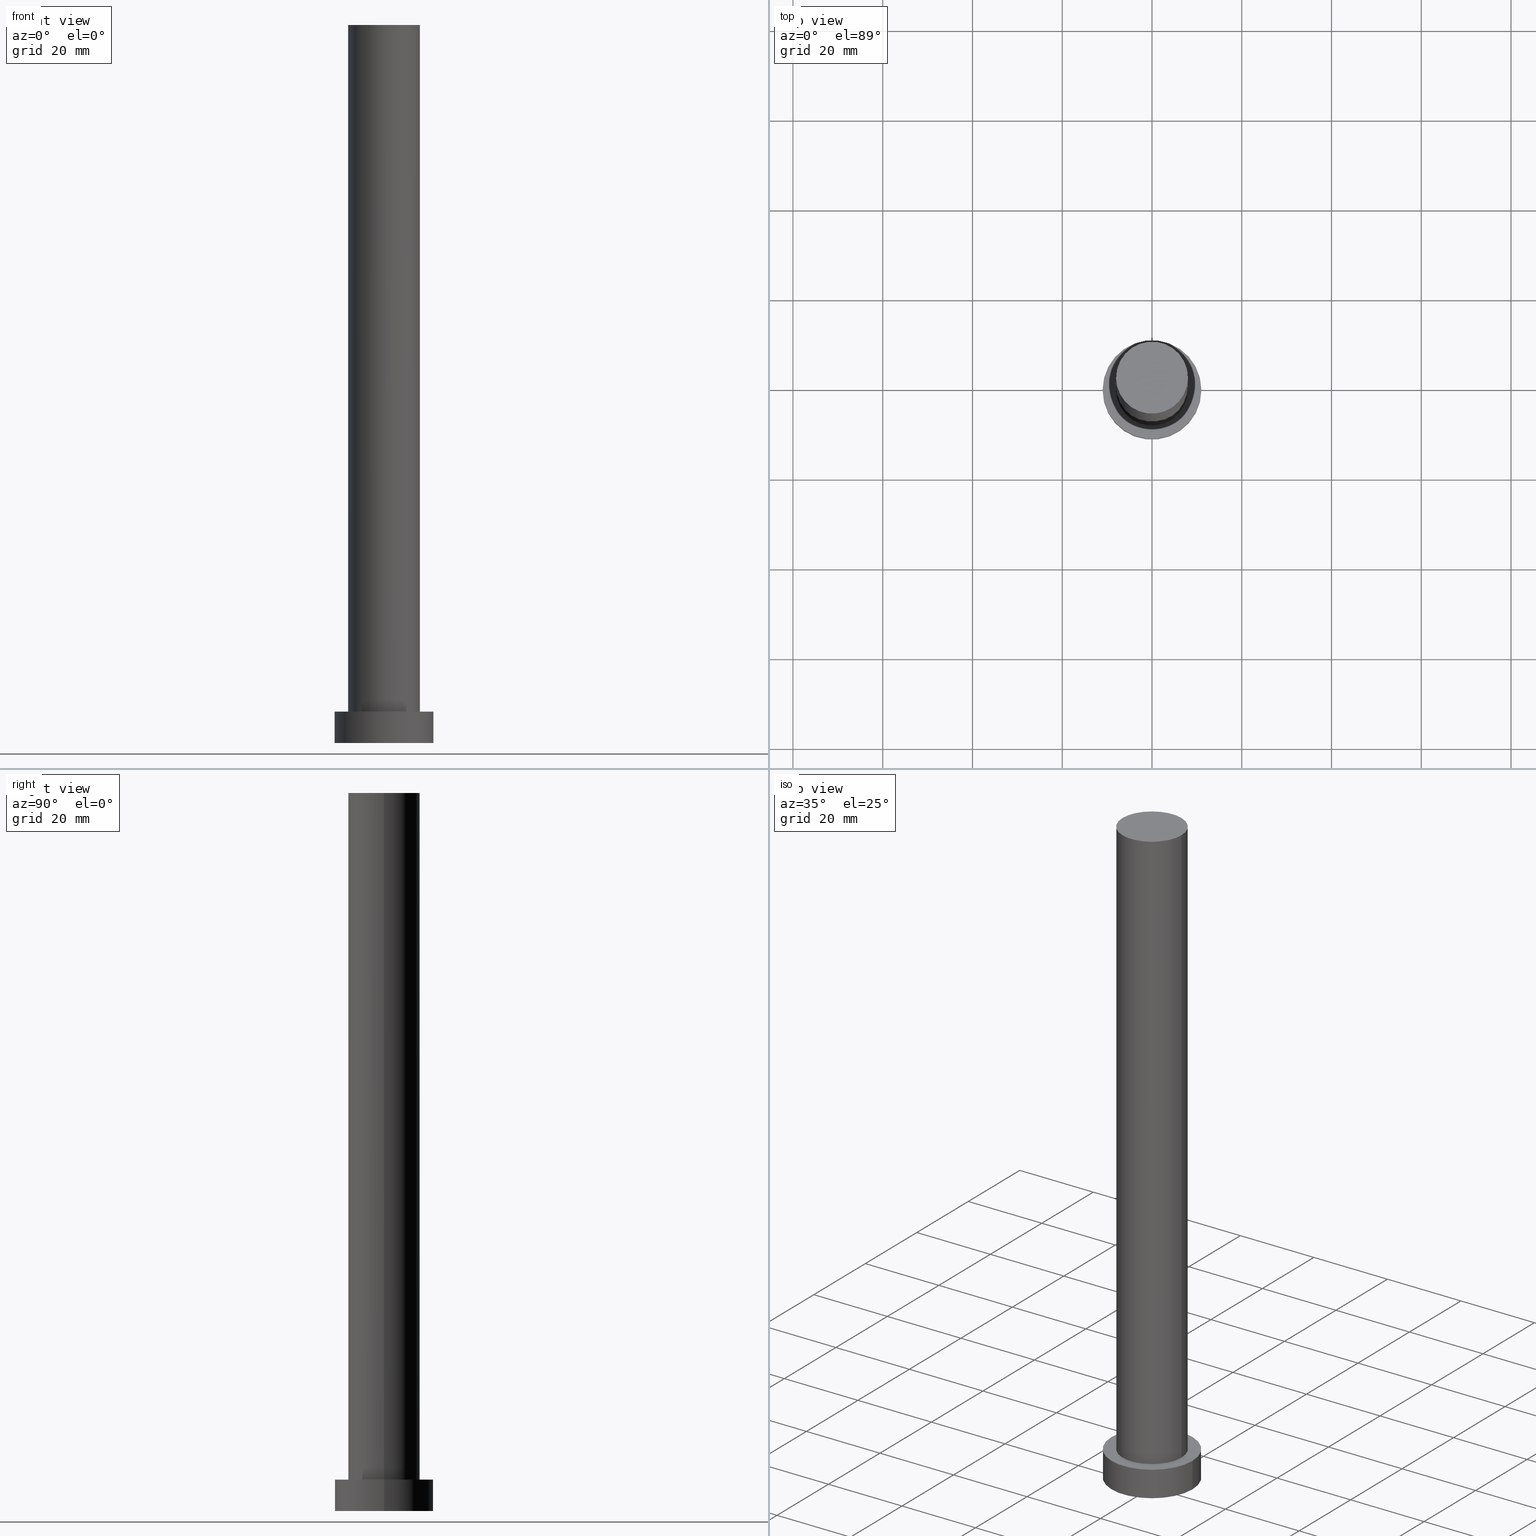
[diagram: canonical four-view strip — front | top / right | iso, engineering-drawing reading convention]
A machine part, canonical four-view strip (front | top / right | iso — engineering-drawing reading convention). The complete STEP part file that produces these views, byte-faithful:
ISO-10303-21;
HEADER;
FILE_DESCRIPTION (( 'STEP AP203' ),
    '1' );
FILE_NAME ('a74c.STEP',
    '2023-02-12T10:46:06',
    ( '' ),
    ( '' ),
    'SwSTEP 2.0',
    'SolidWorks 2019',
    '' );
FILE_SCHEMA (( 'CONFIG_CONTROL_DESIGN' ));
ENDSEC;

DATA;
#1 = ORIENTED_EDGE ( 'NONE', *, *, #70, .F. ) ;
#2 = EDGE_CURVE ( 'NONE', #136, #14, #25, .T. ) ;
#3 = APPLICATION_CONTEXT ( 'configuration controlled 3d designs of mechanical parts and assemblies' ) ;
#4 = LINE ( 'NONE', #167, #87 ) ;
#5 = DIRECTION ( 'NONE',  ( 0.000000000000000000, 0.000000000000000000, 1.000000000000000000 ) ) ;
#6 = APPROVAL_PERSON_ORGANIZATION ( #160, #196, #125 ) ;
#7 = CARTESIAN_POINT ( 'NONE',  ( 0.000000000000000000, 0.000000000000000000, 0.000000000000000000 ) ) ;
#8 = CARTESIAN_POINT ( 'NONE',  ( 0.000000000000000000, 0.000000000000000000, 7.000000000000000000 ) ) ;
#9 = AXIS2_PLACEMENT_3D ( 'NONE', #211, #38, #11 ) ;
#10 = CC_DESIGN_PERSON_AND_ORGANIZATION_ASSIGNMENT ( #84, #251, ( #244 ) ) ;
#11 = DIRECTION ( 'NONE',  ( -1.000000000000000000, 0.000000000000000000, 0.000000000000000000 ) ) ;
#12 = LINE ( 'NONE', #80, #158 ) ;
#13 = VERTEX_POINT ( 'NONE', #44 ) ;
#14 = VERTEX_POINT ( 'NONE', #41 ) ;
#15 = MANIFOLD_SOLID_BREP ( 'P�idat vysunut�m3', #112 ) ;
#16 = AXIS2_PLACEMENT_3D ( 'NONE', #8, #132, #75 ) ;
#17 = EDGE_LOOP ( 'NONE', ( #57, #124 ) ) ;
#18 = ORIENTED_EDGE ( 'NONE', *, *, #144, .F. ) ;
#19 = CIRCLE ( 'NONE', #79, 11.00000000000000000 ) ;
#20 = APPROVAL_DATE_TIME ( #200, #196 ) ;
#21 = ORIENTED_EDGE ( 'NONE', *, *, #144, .T. ) ;
#22 = DIRECTION ( 'NONE',  ( -0.000000000000000000, -0.000000000000000000, -1.000000000000000000 ) ) ;
#23 =( LENGTH_UNIT ( ) NAMED_UNIT ( * ) SI_UNIT ( .MILLI., .METRE. ) );
#24 = UNCERTAINTY_MEASURE_WITH_UNIT (LENGTH_MEASURE( 1.000000000000000082E-05 ), #23, 'distance_accuracy_value', 'NONE');
#25 = CIRCLE ( 'NONE', #130, 8.000000000000000000 ) ;
#26 = ADVANCED_FACE ( 'NONE', ( #203 ), #186, .T. ) ;
#27 = CARTESIAN_POINT ( 'NONE',  ( 0.000000000000000000, 0.000000000000000000, 7.000000000000000000 ) ) ;
#28 = DIRECTION ( 'NONE',  ( 1.000000000000000000, 0.000000000000000000, 0.000000000000000000 ) ) ;
#29 = PLANE ( 'NONE',  #116 ) ;
#30 = CIRCLE ( 'NONE', #183, 11.00000000000000000 ) ;
#31 = DATE_AND_TIME ( #40, #184 ) ;
#32 = EDGE_CURVE ( 'NONE', #162, #96, #4, .T. ) ;
#33 = ORIENTED_EDGE ( 'NONE', *, *, #32, .F. ) ;
#34 = DESIGN_CONTEXT ( 'detailed design', #106, 'design' ) ;
#35 = ORIENTED_EDGE ( 'NONE', *, *, #2, .F. ) ;
#36 = CARTESIAN_POINT ( 'NONE',  ( 0.000000000000000000, 0.000000000000000000, 0.000000000000000000 ) ) ;
#37 = EDGE_LOOP ( 'NONE', ( #236, #234 ) ) ;
#38 = DIRECTION ( 'NONE',  ( -0.000000000000000000, -0.000000000000000000, -1.000000000000000000 ) ) ;
#39 = VERTEX_POINT ( 'NONE', #107 ) ;
#40 = CALENDAR_DATE ( 2023, 12, 2 ) ;
#41 = CARTESIAN_POINT ( 'NONE',  ( 8.000000000000000000, 9.797174393178825657E-16, 160.0000000000000000 ) ) ;
#42 = APPROVAL_STATUS ( 'not_yet_approved' ) ;
#43 = LOCAL_TIME ( 11, 46, 6.000000000000000000, #185 ) ;
#44 = CARTESIAN_POINT ( 'NONE',  ( -11.00000000000000000, 0.000000000000000000, 0.000000000000000000 ) ) ;
#45 = CC_DESIGN_PERSON_AND_ORGANIZATION_ASSIGNMENT ( #153, #232, ( #128 ) ) ;
#46 =( NAMED_UNIT ( * ) PLANE_ANGLE_UNIT ( ) SI_UNIT ( $, .RADIAN. ) );
#47 = DIRECTION ( 'NONE',  ( 1.000000000000000000, 0.000000000000000000, 0.000000000000000000 ) ) ;
#48 = ADVANCED_FACE ( 'NONE', ( #68 ), #247, .T. ) ;
#49 = LOCAL_TIME ( 11, 46, 6.000000000000000000, #233 ) ;
#50 = PERSON ( 'NEUR�EN�', 'NEUR�EN�', 'NEUR�EN�', ('NEUR�EN�'), ('NEUR�EN�'), ('NEUR�EN�') ) ;
#51 = FACE_OUTER_BOUND ( 'NONE', #64, .T. ) ;
#52 = DIRECTION ( 'NONE',  ( 0.000000000000000000, 0.000000000000000000, 1.000000000000000000 ) ) ;
#53 = ADVANCED_FACE ( 'NONE', ( #83 ), #61, .T. ) ;
#54 = DIRECTION ( 'NONE',  ( 1.000000000000000000, 0.000000000000000000, 0.000000000000000000 ) ) ;
#55 = CARTESIAN_POINT ( 'NONE',  ( 0.000000000000000000, 0.000000000000000000, 160.0000000000000000 ) ) ;
#56 = PERSON_AND_ORGANIZATION ( #50, #172 ) ;
#57 = ORIENTED_EDGE ( 'NONE', *, *, #66, .F. ) ;
#58 = CALENDAR_DATE ( 2023, 12, 2 ) ;
#59 = ORIENTED_EDGE ( 'NONE', *, *, #70, .T. ) ;
#60 = ORIENTED_EDGE ( 'NONE', *, *, #77, .F. ) ;
#61 = CYLINDRICAL_SURFACE ( 'NONE', #122, 8.000000000000000000 ) ;
#62 = ORIENTED_EDGE ( 'NONE', *, *, #171, .T. ) ;
#63 = APPROVAL_ROLE ( '' ) ;
#64 = EDGE_LOOP ( 'NONE', ( #141, #255, #239, #18 ) ) ;
#65 = DATE_AND_TIME ( #254, #230 ) ;
#66 = EDGE_CURVE ( 'NONE', #13, #96, #208, .T. ) ;
#67 = CIRCLE ( 'NONE', #165, 11.00000000000000000 ) ;
#68 = FACE_OUTER_BOUND ( 'NONE', #175, .T. ) ;
#69 = PERSON_AND_ORGANIZATION ( #50, #172 ) ;
#70 = EDGE_CURVE ( 'NONE', #136, #39, #235, .T. ) ;
#71 = CARTESIAN_POINT ( 'NONE',  ( 0.000000000000000000, 0.000000000000000000, 0.000000000000000000 ) ) ;
#72 = VECTOR ( 'NONE', #168, 1000.000000000000000 ) ;
#73 = PLANE ( 'NONE',  #109 ) ;
#74 = SECURITY_CLASSIFICATION ( '', '', #97 ) ;
#75 = DIRECTION ( 'NONE',  ( 1.000000000000000000, 0.000000000000000000, 0.000000000000000000 ) ) ;
#76 = CARTESIAN_POINT ( 'NONE',  ( 0.000000000000000000, 0.000000000000000000, 7.000000000000000000 ) ) ;
#77 = EDGE_CURVE ( 'NONE', #39, #201, #98, .T. ) ;
#78 = AXIS2_PLACEMENT_3D ( 'NONE', #95, #159, #154 ) ;
#79 = AXIS2_PLACEMENT_3D ( 'NONE', #170, #52, #145 ) ;
#80 = CARTESIAN_POINT ( 'NONE',  ( 8.000000000000000000, 9.797174393178825657E-16, 160.0000000000000000 ) ) ;
#81 = ORIENTED_EDGE ( 'NONE', *, *, #163, .T. ) ;
#82 = MECHANICAL_CONTEXT ( 'NONE', #3, 'mechanical' ) ;
#83 = FACE_OUTER_BOUND ( 'NONE', #213, .T. ) ;
#84 = PERSON_AND_ORGANIZATION ( #50, #172 ) ;
#85 = AXIS2_PLACEMENT_3D ( 'NONE', #27, #192, #134 ) ;
#86 = EDGE_CURVE ( 'NONE', #14, #136, #194, .T. ) ;
#87 = VECTOR ( 'NONE', #22, 1000.000000000000000 ) ;
#88 = CIRCLE ( 'NONE', #219, 8.000000000000000000 ) ;
#89 = DIRECTION ( 'NONE',  ( 0.000000000000000000, 0.000000000000000000, 1.000000000000000000 ) ) ;
#90 = CARTESIAN_POINT ( 'NONE',  ( -11.00000000000000000, 0.000000000000000000, 7.000000000000000000 ) ) ;
#91 = DIRECTION ( 'NONE',  ( 0.000000000000000000, 0.000000000000000000, 1.000000000000000000 ) ) ;
#92 = CARTESIAN_POINT ( 'NONE',  ( 11.00000000000000000, 1.347111479062088405E-15, 0.000000000000000000 ) ) ;
#93 = CARTESIAN_POINT ( 'NONE',  ( 8.000000000000000000, 9.797174393178825657E-16, 7.000000000000000000 ) ) ;
#94 = ADVANCED_FACE ( 'NONE', ( #193 ), #29, .T. ) ;
#95 = CARTESIAN_POINT ( 'NONE',  ( 0.000000000000000000, 0.000000000000000000, 0.000000000000000000 ) ) ;
#96 = VERTEX_POINT ( 'NONE', #92 ) ;
#97 = SECURITY_CLASSIFICATION_LEVEL ( 'unclassified' ) ;
#98 = CIRCLE ( 'NONE', #16, 8.000000000000000000 ) ;
#99 = VERTEX_POINT ( 'NONE', #90 ) ;
#100 = EDGE_LOOP ( 'NONE', ( #217, #81 ) ) ;
#101 = AXIS2_PLACEMENT_3D ( 'NONE', #36, #173, #179 ) ;
#102 = APPROVAL_DATE_TIME ( #65, #157 ) ;
#103 = CC_DESIGN_PERSON_AND_ORGANIZATION_ASSIGNMENT ( #119, #214, ( #225 ) ) ;
#104 = PERSON_AND_ORGANIZATION ( #50, #172 ) ;
#105 = CARTESIAN_POINT ( 'NONE',  ( 0.000000000000000000, 0.000000000000000000, 160.0000000000000000 ) ) ;
#106 = APPLICATION_CONTEXT ( 'configuration controlled 3d designs of mechanical parts and assemblies' ) ;
#107 = CARTESIAN_POINT ( 'NONE',  ( -8.000000000000000000, 0.000000000000000000, 7.000000000000000000 ) ) ;
#108 = CC_DESIGN_PERSON_AND_ORGANIZATION_ASSIGNMENT ( #180, #197, ( #225 ) ) ;
#109 = AXIS2_PLACEMENT_3D ( 'NONE', #148, #91, #226 ) ;
#110 = FACE_BOUND ( 'NONE', #199, .T. ) ;
#111 = PLANE ( 'NONE',  #238 ) ;
#112 = CLOSED_SHELL ( 'NONE', ( #26, #246, #48, #231, #151, #53, #94 ) ) ;
#113 = LINE ( 'NONE', #169, #195 ) ;
#114 = CARTESIAN_POINT ( 'NONE',  ( 0.000000000000000000, 0.000000000000000000, 160.0000000000000000 ) ) ;
#115 = CARTESIAN_POINT ( 'NONE',  ( 0.000000000000000000, 0.000000000000000000, 160.0000000000000000 ) ) ;
#116 = AXIS2_PLACEMENT_3D ( 'NONE', #115, #5, #245 ) ;
#117 = DATE_TIME_ROLE ( 'creation_date' ) ;
#118 = ORIENTED_EDGE ( 'NONE', *, *, #147, .F. ) ;
#119 = PERSON_AND_ORGANIZATION ( #50, #172 ) ;
#120 = DIRECTION ( 'NONE',  ( -0.000000000000000000, -0.000000000000000000, -1.000000000000000000 ) ) ;
#121 = EDGE_LOOP ( 'NONE', ( #198, #181, #62, #1 ) ) ;
#122 = AXIS2_PLACEMENT_3D ( 'NONE', #55, #174, #250 ) ;
#123 = LOCAL_TIME ( 11, 46, 6.000000000000000000, #182 ) ;
#124 = ORIENTED_EDGE ( 'NONE', *, *, #127, .F. ) ;
#125 = APPROVAL_ROLE ( '' ) ;
#126 = DATE_AND_TIME ( #242, #43 ) ;
#127 = EDGE_CURVE ( 'NONE', #96, #13, #30, .T. ) ;
#128 = PRODUCT ( 'a74c', 'a74c', '', ( #82 ) ) ;
#129 = CARTESIAN_POINT ( 'NONE',  ( 0.000000000000000000, 0.000000000000000000, 7.000000000000000000 ) ) ;
#130 = AXIS2_PLACEMENT_3D ( 'NONE', #105, #215, #47 ) ;
#131 = CARTESIAN_POINT ( 'NONE',  ( -8.000000000000000000, 0.000000000000000000, 160.0000000000000000 ) ) ;
#132 = DIRECTION ( 'NONE',  ( 0.000000000000000000, 0.000000000000000000, 1.000000000000000000 ) ) ;
#133 = APPLICATION_PROTOCOL_DEFINITION ( 'international standard', 'config_control_design', 1994, #106 ) ;
#134 = DIRECTION ( 'NONE',  ( -1.000000000000000000, 0.000000000000000000, 0.000000000000000000 ) ) ;
#135 = CARTESIAN_POINT ( 'NONE',  ( -8.000000000000000000, 0.000000000000000000, 160.0000000000000000 ) ) ;
#136 = VERTEX_POINT ( 'NONE', #131 ) ;
#137 = CC_DESIGN_APPROVAL ( #209, ( #74 ) ) ;
#138 = ORIENTED_EDGE ( 'NONE', *, *, #253, .F. ) ;
#139 = COORDINATED_UNIVERSAL_TIME_OFFSET ( 1, 0, .AHEAD. ) ;
#140 = CC_DESIGN_DATE_AND_TIME_ASSIGNMENT ( #142, #164, ( #74 ) ) ;
#141 = ORIENTED_EDGE ( 'NONE', *, *, #163, .F. ) ;
#142 = DATE_AND_TIME ( #221, #123 ) ;
#143 =( GEOMETRIC_REPRESENTATION_CONTEXT ( 3 ) GLOBAL_UNCERTAINTY_ASSIGNED_CONTEXT ( ( #24 ) ) GLOBAL_UNIT_ASSIGNED_CONTEXT ( ( #23, #46, #237 ) ) REPRESENTATION_CONTEXT ( 'NONE', 'WORKASPACE' ) );
#144 = EDGE_CURVE ( 'NONE', #99, #13, #113, .T. ) ;
#145 = DIRECTION ( 'NONE',  ( 1.000000000000000000, 0.000000000000000000, 0.000000000000000000 ) ) ;
#146 = APPROVAL_PERSON_ORGANIZATION ( #69, #209, #202 ) ;
#147 = EDGE_CURVE ( 'NONE', #99, #162, #67, .T. ) ;
#148 = CARTESIAN_POINT ( 'NONE',  ( 0.000000000000000000, 0.000000000000000000, 7.000000000000000000 ) ) ;
#149 = CARTESIAN_POINT ( 'NONE',  ( 11.00000000000000000, 1.347111479062088405E-15, 7.000000000000000000 ) ) ;
#150 = DIRECTION ( 'NONE',  ( 0.000000000000000000, 0.000000000000000000, 1.000000000000000000 ) ) ;
#151 = ADVANCED_FACE ( 'NONE', ( #229 ), #111, .F. ) ;
#152 = ADVANCED_BREP_SHAPE_REPRESENTATION ( 'a74c', ( #15, #101 ), #143 ) ;
#153 = PERSON_AND_ORGANIZATION ( #50, #172 ) ;
#154 = DIRECTION ( 'NONE',  ( 1.000000000000000000, 0.000000000000000000, 0.000000000000000000 ) ) ;
#155 = ORIENTED_EDGE ( 'NONE', *, *, #171, .F. ) ;
#156 = APPROVAL_STATUS ( 'not_yet_approved' ) ;
#157 = APPROVAL ( #161, 'NEUR�EN�' ) ;
#158 = VECTOR ( 'NONE', #120, 1000.000000000000000 ) ;
#159 = DIRECTION ( 'NONE',  ( 0.000000000000000000, 0.000000000000000000, 1.000000000000000000 ) ) ;
#160 = PERSON_AND_ORGANIZATION ( #50, #172 ) ;
#161 = APPROVAL_STATUS ( 'not_yet_approved' ) ;
#162 = VERTEX_POINT ( 'NONE', #149 ) ;
#163 = EDGE_CURVE ( 'NONE', #162, #99, #19, .T. ) ;
#164 = DATE_TIME_ROLE ( 'classification_date' ) ;
#165 = AXIS2_PLACEMENT_3D ( 'NONE', #129, #150, #166 ) ;
#166 = DIRECTION ( 'NONE',  ( 1.000000000000000000, 0.000000000000000000, 0.000000000000000000 ) ) ;
#167 = CARTESIAN_POINT ( 'NONE',  ( 11.00000000000000000, 1.347111479062088405E-15, 7.000000000000000000 ) ) ;
#168 = DIRECTION ( 'NONE',  ( -0.000000000000000000, -0.000000000000000000, -1.000000000000000000 ) ) ;
#169 = CARTESIAN_POINT ( 'NONE',  ( -11.00000000000000000, 0.000000000000000000, 7.000000000000000000 ) ) ;
#170 = CARTESIAN_POINT ( 'NONE',  ( 0.000000000000000000, 0.000000000000000000, 7.000000000000000000 ) ) ;
#171 = EDGE_CURVE ( 'NONE', #201, #39, #88, .T. ) ;
#172 = ORGANIZATION ( 'NEUR�EN�', 'NEUR�EN�', '' ) ;
#173 = DIRECTION ( 'NONE',  ( 0.000000000000000000, 0.000000000000000000, 1.000000000000000000 ) ) ;
#174 = DIRECTION ( 'NONE',  ( -0.000000000000000000, -0.000000000000000000, -1.000000000000000000 ) ) ;
#175 = EDGE_LOOP ( 'NONE', ( #33, #118, #21, #216 ) ) ;
#176 = COORDINATED_UNIVERSAL_TIME_OFFSET ( 1, 0, .AHEAD. ) ;
#177 = ORIENTED_EDGE ( 'NONE', *, *, #77, .T. ) ;
#178 = PERSON_AND_ORGANIZATION_ROLE ( 'classification_officer' ) ;
#179 = DIRECTION ( 'NONE',  ( 1.000000000000000000, 0.000000000000000000, 0.000000000000000000 ) ) ;
#180 = PERSON_AND_ORGANIZATION ( #50, #172 ) ;
#181 = ORIENTED_EDGE ( 'NONE', *, *, #253, .T. ) ;
#182 = COORDINATED_UNIVERSAL_TIME_OFFSET ( 1, 0, .AHEAD. ) ;
#183 = AXIS2_PLACEMENT_3D ( 'NONE', #7, #227, #28 ) ;
#184 = LOCAL_TIME ( 11, 46, 6.000000000000000000, #139 ) ;
#185 = COORDINATED_UNIVERSAL_TIME_OFFSET ( 1, 0, .AHEAD. ) ;
#186 = CYLINDRICAL_SURFACE ( 'NONE', #223, 8.000000000000000000 ) ;
#187 = SHAPE_DEFINITION_REPRESENTATION ( #191, #152 ) ;
#188 = PRODUCT_RELATED_PRODUCT_CATEGORY ( 'detail', '', ( #128 ) ) ;
#189 = DIRECTION ( 'NONE',  ( -0.000000000000000000, -0.000000000000000000, -1.000000000000000000 ) ) ;
#190 = FACE_OUTER_BOUND ( 'NONE', #100, .T. ) ;
#191 = PRODUCT_DEFINITION_SHAPE ( 'NONE', 'NONE',  #244 ) ;
#192 = DIRECTION ( 'NONE',  ( -0.000000000000000000, -0.000000000000000000, -1.000000000000000000 ) ) ;
#193 = FACE_OUTER_BOUND ( 'NONE', #37, .T. ) ;
#194 = CIRCLE ( 'NONE', #228, 8.000000000000000000 ) ;
#195 = VECTOR ( 'NONE', #249, 1000.000000000000000 ) ;
#196 = APPROVAL ( #156, 'NEUR�EN�' ) ;
#197 = PERSON_AND_ORGANIZATION_ROLE ( 'design_supplier' ) ;
#198 = ORIENTED_EDGE ( 'NONE', *, *, #86, .F. ) ;
#199 = EDGE_LOOP ( 'NONE', ( #60, #155 ) ) ;
#200 = DATE_AND_TIME ( #58, #49 ) ;
#201 = VERTEX_POINT ( 'NONE', #93 ) ;
#202 = APPROVAL_ROLE ( '' ) ;
#203 = FACE_OUTER_BOUND ( 'NONE', #121, .T. ) ;
#204 = CARTESIAN_POINT ( 'NONE',  ( 0.000000000000000000, 0.000000000000000000, 160.0000000000000000 ) ) ;
#205 = CC_DESIGN_APPROVAL ( #196, ( #225 ) ) ;
#206 = DIRECTION ( 'NONE',  ( 1.000000000000000000, 0.000000000000000000, -0.000000000000000000 ) ) ;
#207 = CYLINDRICAL_SURFACE ( 'NONE', #85, 11.00000000000000000 ) ;
#208 = CIRCLE ( 'NONE', #78, 11.00000000000000000 ) ;
#209 = APPROVAL ( #42, 'NEUR�EN�' ) ;
#210 = DIRECTION ( 'NONE',  ( 1.000000000000000000, 0.000000000000000000, 0.000000000000000000 ) ) ;
#211 = CARTESIAN_POINT ( 'NONE',  ( 0.000000000000000000, 0.000000000000000000, 7.000000000000000000 ) ) ;
#212 = CC_DESIGN_SECURITY_CLASSIFICATION ( #74, ( #225 ) ) ;
#213 = EDGE_LOOP ( 'NONE', ( #138, #35, #59, #177 ) ) ;
#214 = PERSON_AND_ORGANIZATION_ROLE ( 'creator' ) ;
#215 = DIRECTION ( 'NONE',  ( 0.000000000000000000, 0.000000000000000000, 1.000000000000000000 ) ) ;
#216 = ORIENTED_EDGE ( 'NONE', *, *, #66, .T. ) ;
#217 = ORIENTED_EDGE ( 'NONE', *, *, #147, .T. ) ;
#218 = CC_DESIGN_PERSON_AND_ORGANIZATION_ASSIGNMENT ( #104, #178, ( #74 ) ) ;
#219 = AXIS2_PLACEMENT_3D ( 'NONE', #76, #224, #210 ) ;
#220 = APPLICATION_PROTOCOL_DEFINITION ( 'international standard', 'config_control_design', 1994, #3 ) ;
#221 = CALENDAR_DATE ( 2023, 12, 2 ) ;
#222 = APPROVAL_DATE_TIME ( #126, #209 ) ;
#223 = AXIS2_PLACEMENT_3D ( 'NONE', #204, #189, #241 ) ;
#224 = DIRECTION ( 'NONE',  ( 0.000000000000000000, 0.000000000000000000, 1.000000000000000000 ) ) ;
#225 = PRODUCT_DEFINITION_FORMATION_WITH_SPECIFIED_SOURCE ( 'LIBOVOLN�', '', #128, .NOT_KNOWN. ) ;
#226 = DIRECTION ( 'NONE',  ( 1.000000000000000000, 0.000000000000000000, -0.000000000000000000 ) ) ;
#227 = DIRECTION ( 'NONE',  ( 0.000000000000000000, 0.000000000000000000, 1.000000000000000000 ) ) ;
#228 = AXIS2_PLACEMENT_3D ( 'NONE', #114, #89, #54 ) ;
#229 = FACE_OUTER_BOUND ( 'NONE', #17, .T. ) ;
#230 = LOCAL_TIME ( 11, 46, 6.000000000000000000, #176 ) ;
#231 = ADVANCED_FACE ( 'NONE', ( #110, #190 ), #73, .T. ) ;
#232 = PERSON_AND_ORGANIZATION_ROLE ( 'design_owner' ) ;
#233 = COORDINATED_UNIVERSAL_TIME_OFFSET ( 1, 0, .AHEAD. ) ;
#234 = ORIENTED_EDGE ( 'NONE', *, *, #86, .T. ) ;
#235 = LINE ( 'NONE', #135, #72 ) ;
#236 = ORIENTED_EDGE ( 'NONE', *, *, #2, .T. ) ;
#237 =( NAMED_UNIT ( * ) SI_UNIT ( $, .STERADIAN. ) SOLID_ANGLE_UNIT ( ) );
#238 = AXIS2_PLACEMENT_3D ( 'NONE', #71, #248, #206 ) ;
#239 = ORIENTED_EDGE ( 'NONE', *, *, #127, .T. ) ;
#240 = CC_DESIGN_DATE_AND_TIME_ASSIGNMENT ( #31, #117, ( #244 ) ) ;
#241 = DIRECTION ( 'NONE',  ( -1.000000000000000000, 0.000000000000000000, 0.000000000000000000 ) ) ;
#242 = CALENDAR_DATE ( 2023, 12, 2 ) ;
#243 = CC_DESIGN_APPROVAL ( #157, ( #244 ) ) ;
#244 = PRODUCT_DEFINITION ( 'NEZN�M�', '', #225, #34 ) ;
#245 = DIRECTION ( 'NONE',  ( 1.000000000000000000, 0.000000000000000000, -0.000000000000000000 ) ) ;
#246 = ADVANCED_FACE ( 'NONE', ( #51 ), #207, .T. ) ;
#247 = CYLINDRICAL_SURFACE ( 'NONE', #9, 11.00000000000000000 ) ;
#248 = DIRECTION ( 'NONE',  ( 0.000000000000000000, 0.000000000000000000, 1.000000000000000000 ) ) ;
#249 = DIRECTION ( 'NONE',  ( -0.000000000000000000, -0.000000000000000000, -1.000000000000000000 ) ) ;
#250 = DIRECTION ( 'NONE',  ( -1.000000000000000000, 0.000000000000000000, 0.000000000000000000 ) ) ;
#251 = PERSON_AND_ORGANIZATION_ROLE ( 'creator' ) ;
#252 = APPROVAL_PERSON_ORGANIZATION ( #56, #157, #63 ) ;
#253 = EDGE_CURVE ( 'NONE', #14, #201, #12, .T. ) ;
#254 = CALENDAR_DATE ( 2023, 12, 2 ) ;
#255 = ORIENTED_EDGE ( 'NONE', *, *, #32, .T. ) ;
ENDSEC;
END-ISO-10303-21;
